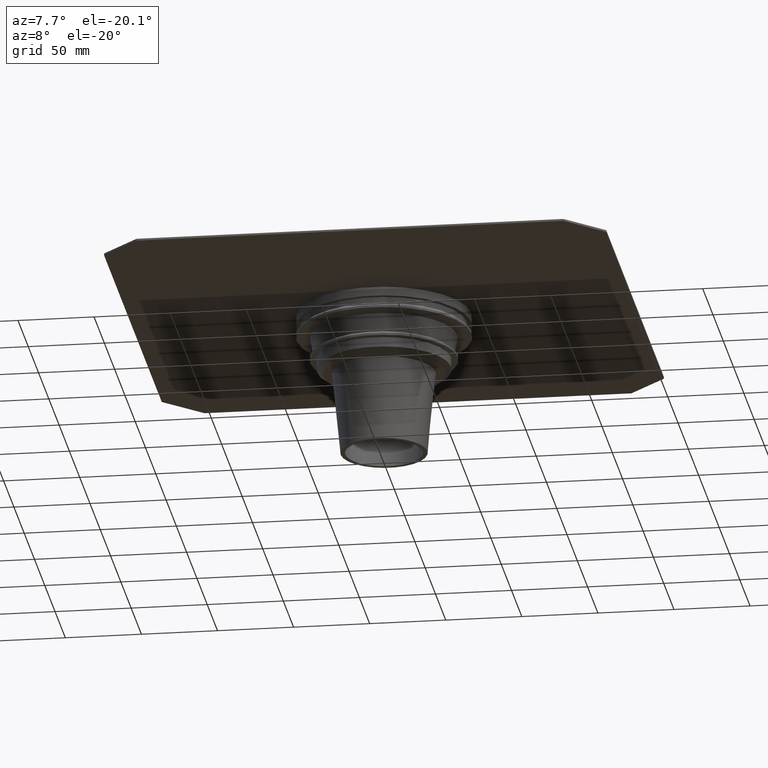
[diagram: clean part render]
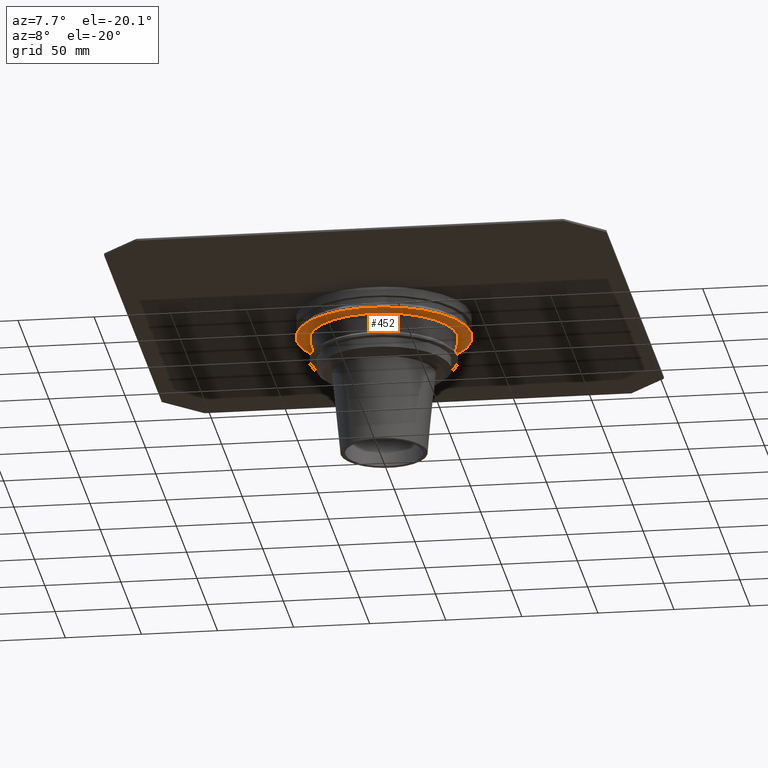
[diagram: same view with one face highlighted and labeled with its STEP entity id]
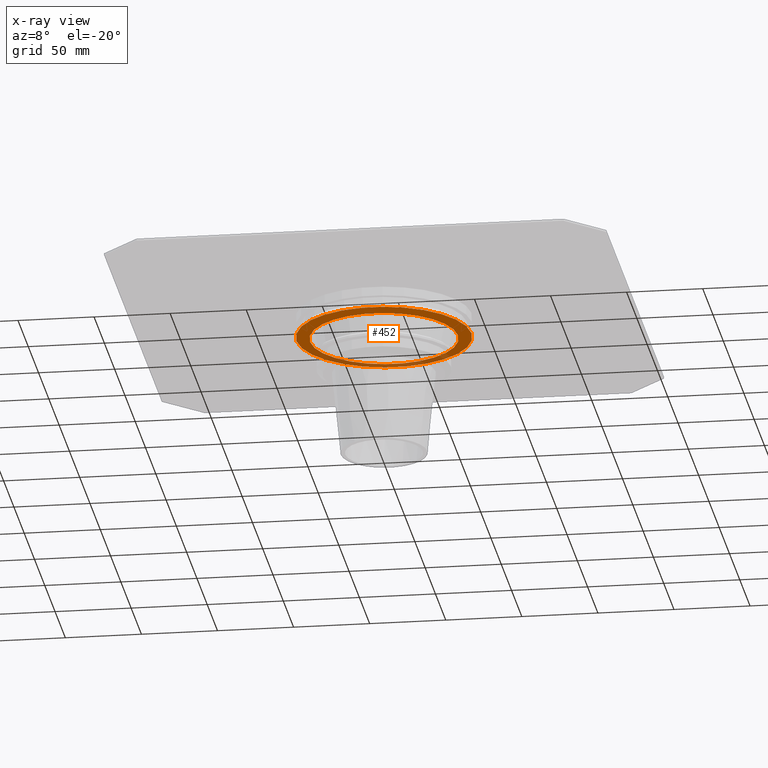
[diagram: x-ray of the same camera — body ghosted, the highlighted face saturated]
A machine part, auxiliary view. The second image highlights one B-rep face of the part: STEP entity #452.
The next image is the same camera in x-ray: the body ghosted, the highlighted face saturated — about 21% of this face is hidden behind the body in this view.
In plain terms, the highlighted conical surface has half-angle 83.62 deg.
Its self-contained STEP definition (entity closure, byte-faithful):
#27=CONICAL_SURFACE('',#519,48.556,1.45945195543957);
#49=CIRCLE('',#518,48.556);
#50=CIRCLE('',#520,57.5);
#130=ORIENTED_EDGE('',*,*,#201,.T.);
#131=ORIENTED_EDGE('',*,*,#200,.F.);
#200=EDGE_CURVE('',#240,#240,#49,.T.);
#201=EDGE_CURVE('',#241,#241,#50,.T.);
#240=VERTEX_POINT('',#777);
#241=VERTEX_POINT('',#780);
#338=EDGE_LOOP('',(#130));
#339=EDGE_LOOP('',(#131));
#396=FACE_BOUND('',#338,.T.);
#397=FACE_BOUND('',#339,.T.);
#452=ADVANCED_FACE('',(#396,#397),#27,.T.);
#518=AXIS2_PLACEMENT_3D('',#776,#648,#649);
#519=AXIS2_PLACEMENT_3D('',#778,#650,#651);
#520=AXIS2_PLACEMENT_3D('',#779,#652,#653);
#648=DIRECTION('',(0.,0.,-1.));
#649=DIRECTION('',(-1.,0.,0.));
#650=DIRECTION('',(0.,0.,1.));
#651=DIRECTION('',(1.,0.,0.));
#652=DIRECTION('',(0.,0.,-1.));
#653=DIRECTION('',(-1.,0.,0.));
#776=CARTESIAN_POINT('',(0.,0.,-15.));
#777=CARTESIAN_POINT('',(-48.556,0.,-15.));
#778=CARTESIAN_POINT('',(0.,0.,-15.));
#779=CARTESIAN_POINT('',(0.,0.,-14.));
#780=CARTESIAN_POINT('',(-57.5,0.,-14.));